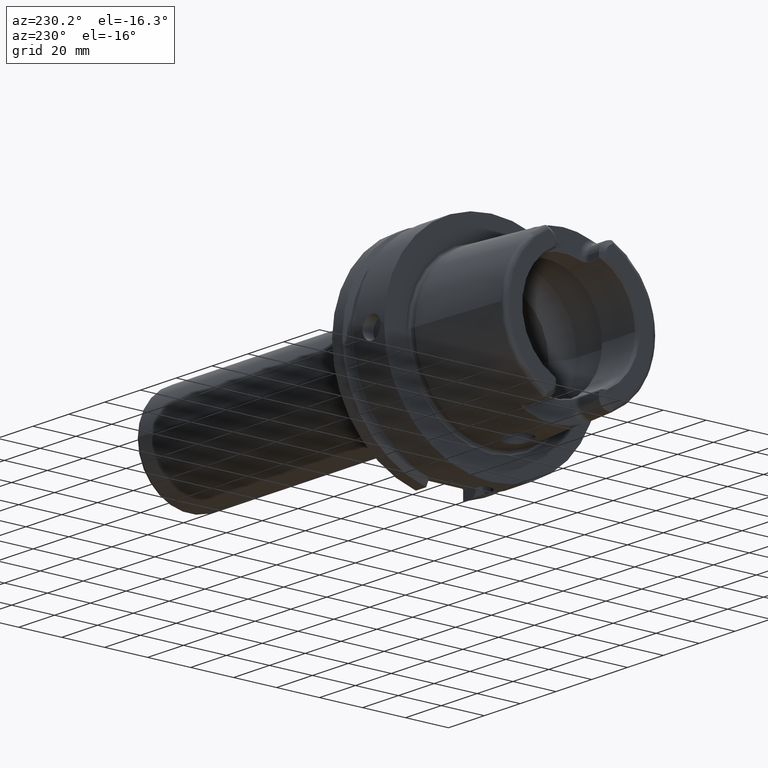
[diagram: clean part render]
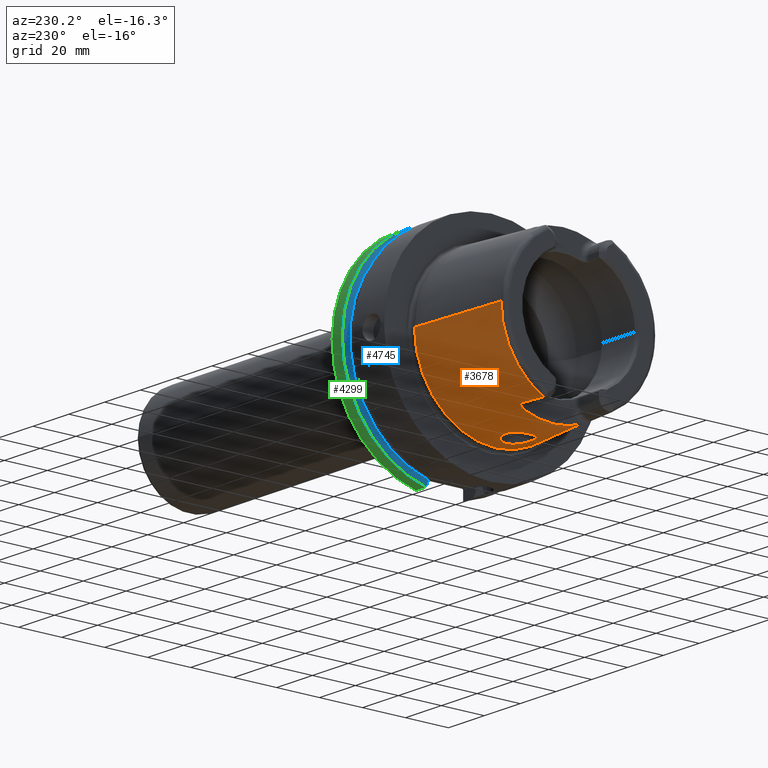
[diagram: same view with three faces highlighted in distinct colors, each labeled with its STEP entity id]
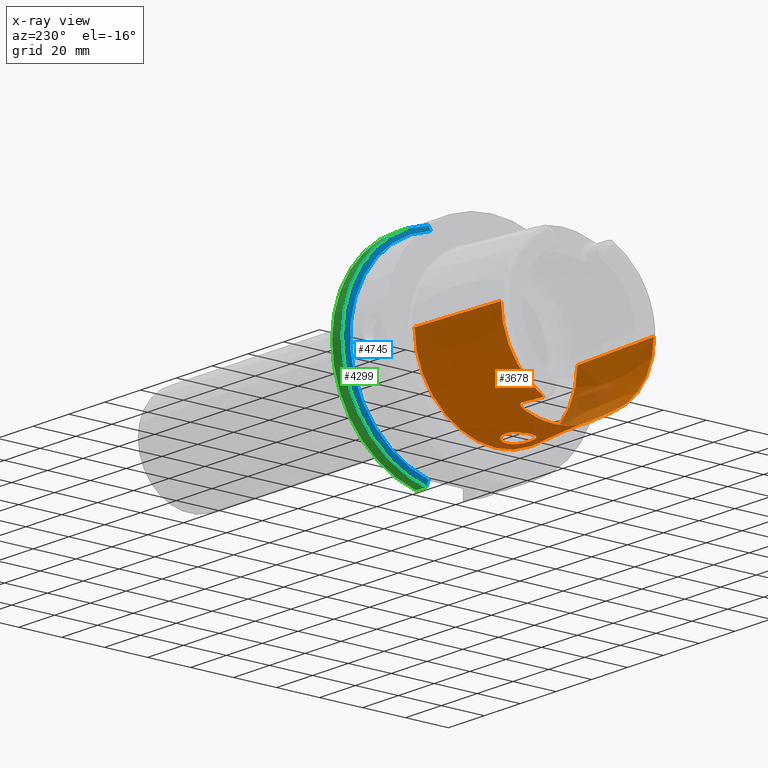
[diagram: x-ray of the same camera — body ghosted, the three highlighted faces saturated]
A machine part, auxiliary view with three faces highlighted in distinct colors.
The next image is the same camera in x-ray (body ghosted, the three faces saturated) — at least one of them is partly hidden behind the body in this view.
Their STEP definitions:

[orange] entity #3678 — the highlighted conical surface has half-angle 2.868 deg.
#307=CARTESIAN_POINT('',(-4.810007448473E1,0.E0,0.E0));
#308=DIRECTION('',(-1.E0,0.E0,0.E0));
#309=DIRECTION('',(0.E0,1.E0,0.E0));
#310=AXIS2_PLACEMENT_3D('',#307,#308,#309);
#392=CARTESIAN_POINT('',(-4.810007448473E1,0.E0,0.E0));
#393=DIRECTION('',(-1.E0,0.E0,0.E0));
#394=DIRECTION('',(0.E0,-4.403806547453E-1,-8.978111599474E-1));
#395=AXIS2_PLACEMENT_3D('',#392,#393,#394);
#542=CARTESIAN_POINT('',(-4.810007448473E1,1.567653238626E1,-3.196E1));
#543=CARTESIAN_POINT('',(-4.691253354608E1,1.581163323682E1,-3.196E1));
#544=CARTESIAN_POINT('',(-4.450693295241E1,1.608249060017E1,-3.196E1));
#545=CARTESIAN_POINT('',(-4.080822205394E1,1.649061651786E1,-3.196E1));
#546=CARTESIAN_POINT('',(-3.827971844003E1,1.676420418060E1,-3.196E1));
#547=CARTESIAN_POINT('',(-3.7E1,1.690135066910E1,-3.196E1));
#549=CARTESIAN_POINT('',(-3.5E1,0.E0,0.E0));
#550=DIRECTION('',(1.E0,0.E0,0.E0));
#551=DIRECTION('',(0.E0,-3.659355944317E-1,-9.306401779033E-1));
#552=AXIS2_PLACEMENT_3D('',#549,#550,#551);
#554=CARTESIAN_POINT('',(-3.7E1,-1.690135066910E1,-3.196E1));
#555=CARTESIAN_POINT('',(-3.827957528302E1,-1.676421952263E1,-3.196E1));
#556=CARTESIAN_POINT('',(-4.080788819039E1,-1.649065289085E1,-3.196E1));
#557=CARTESIAN_POINT('',(-4.450660828452E1,-1.608252688744E1,-3.196E1));
#558=CARTESIAN_POINT('',(-4.691239447940E1,-1.581164905777E1,-3.196E1));
#559=CARTESIAN_POINT('',(-4.810007448473E1,-1.567653238626E1,-3.196E1));
#561=DIRECTION('',(-9.987473526255E-1,5.003724236654E-2,0.E0));
#562=VECTOR('',#561,4.565726694029E1);
#563=CARTESIAN_POINT('',(-2.5E0,-3.788225E1,0.E0));
#564=LINE('',#563,#562);
#565=CARTESIAN_POINT('',(-2.5E0,0.E0,0.E0));
#566=DIRECTION('',(1.E0,0.E0,0.E0));
#567=DIRECTION('',(0.E0,-1.E0,0.E0));
#568=AXIS2_PLACEMENT_3D('',#565,#566,#567);
#570=DIRECTION('',(-9.987473526255E-1,-5.003724236654E-2,0.E0));
#571=VECTOR('',#570,4.565726694029E1);
#572=CARTESIAN_POINT('',(-2.5E0,3.788225E1,0.E0));
#573=LINE('',#572,#571);
#574=CARTESIAN_POINT('',(-8.500618228215E0,-4.475741567310E-11,
-3.758161092103E1));
#575=CARTESIAN_POINT('',(-8.500550626629E0,2.307123186996E-1,
-3.758164609326E1));
#576=CARTESIAN_POINT('',(-8.527361627144E0,7.336655055656E-1,
-3.757562989718E1));
#577=CARTESIAN_POINT('',(-8.658487901890E0,1.501607868725E0,-3.754653658895E1));
#578=CARTESIAN_POINT('',(-8.897257248323E0,2.287068896E0,-3.749470537780E1));
#579=CARTESIAN_POINT('',(-9.233930830616E0,3.038376631295E0,-3.742413833235E1));
#580=CARTESIAN_POINT('',(-9.665180423226E0,3.744542284435E0,-3.733806106411E1));
#581=CARTESIAN_POINT('',(-1.018494007596E1,4.392525906197E0,-3.724079839048E1));
#582=CARTESIAN_POINT('',(-1.078433252086E1,4.969742317677E0,-3.713748237766E1));
#583=CARTESIAN_POINT('',(-1.145295368828E1,5.465719413789E0,-3.703348699097E1));
#584=CARTESIAN_POINT('',(-1.217872434304E1,5.871741506149E0,-3.693411809702E1));
#585=CARTESIAN_POINT('',(-1.294907725396E1,6.181458789403E0,-3.684412609384E1));
#586=CARTESIAN_POINT('',(-1.375077304364E1,6.390383355882E0,-3.676749362246E1));
#587=CARTESIAN_POINT('',(-1.457124723519E1,6.496150992971E0,-3.670710043979E1));
#588=CARTESIAN_POINT('',(-1.539963323060E1,6.497327684605E0,-3.666473599908E1));
#589=CARTESIAN_POINT('',(-1.621811808436E1,6.394337052140E0,-3.664130538745E1));
#590=CARTESIAN_POINT('',(-1.701498565109E1,6.189982543680E0,-3.663607891146E1));
#591=CARTESIAN_POINT('',(-1.778004900083E1,5.887116868581E0,-3.664741303044E1));
#592=CARTESIAN_POINT('',(-1.850137732128E1,5.490146143225E0,-3.667277568766E1));
#593=CARTESIAN_POINT('',(-1.916799834207E1,5.004550368212E0,-3.670886700839E1));
#594=CARTESIAN_POINT('',(-1.976920462201E1,4.437176205297E0,-3.675182754134E1));
#595=CARTESIAN_POINT('',(-2.029477253260E1,3.796411168194E0,-3.679746060413E1));
#596=CARTESIAN_POINT('',(-2.073457092496E1,3.093790391877E0,-3.684142692236E1));
#597=CARTESIAN_POINT('',(-2.108101531841E1,2.341868855664E0,-3.687975533364E1));
#598=CARTESIAN_POINT('',(-2.132907064090E1,1.552529546171E0,-3.690920014808E1));
#599=CARTESIAN_POINT('',(-2.146979802624E1,7.662360037897E-1,
-3.692663777819E1));
#600=CARTESIAN_POINT('',(-2.149947827869E1,2.456572466609E-1,
-3.693041402385E1));
#601=CARTESIAN_POINT('',(-2.149938206728E1,4.252313622681E-11,
-3.693037255683E1));
#603=CARTESIAN_POINT('',(-2.149938206728E1,4.252313622681E-11,
-3.693037255683E1));
#604=CARTESIAN_POINT('',(-2.149945538697E1,-2.340479521171E-1,
-3.693040395485E1));
#605=CARTESIAN_POINT('',(-2.147182734210E1,-7.430736824871E-1,
-3.692689923808E1));
#606=CARTESIAN_POINT('',(-2.133729628437E1,-1.518670363132E0,
-3.691020402111E1));
#607=CARTESIAN_POINT('',(-2.109342961129E1,-2.309431654899E0,
-3.688118929283E1));
#608=CARTESIAN_POINT('',(-2.075099845802E1,-3.063198291705E0,
-3.684317083610E1));
#609=CARTESIAN_POINT('',(-2.031499413642E1,-3.768106404610E0,
-3.679936697460E1));
#610=CARTESIAN_POINT('',(-1.979289029767E1,-4.411650229581E0,
-3.675372219731E1));
#611=CARTESIAN_POINT('',(-1.919463266022E1,-4.982323872691E0,
-3.671056084722E1));
#612=CARTESIAN_POINT('',(-1.853041114464E1,-5.471591578572E0,
-3.667409350441E1));
#613=CARTESIAN_POINT('',(-1.781100487862E1,-5.872448697570E0,
-3.664820853921E1));
#614=CARTESIAN_POINT('',(-1.704753604412E1,-6.179316936003E0,
-3.663623504527E1));
#615=CARTESIAN_POINT('',(-1.625202603452E1,-6.387759294270E0,
-3.664073415043E1));
#616=CARTESIAN_POINT('',(-1.543496245560E1,-6.495024783349E0,
-3.666334839609E1));
#617=CARTESIAN_POINT('',(-1.460654750338E1,-6.498344270788E0,
-3.670491373185E1));
#618=CARTESIAN_POINT('',(-1.378596486485E1,-6.397082641248E0,
-3.676453213359E1));
#619=CARTESIAN_POINT('',(-1.298349373108E1,-6.192696568201E0,
-3.684047961027E1));
#620=CARTESIAN_POINT('',(-1.221144146647E1,-5.887281631963E0,
-3.692997057387E1));
#621=CARTESIAN_POINT('',(-1.148337668307E1,-5.485279169694E0,
-3.702903815359E1));
#622=CARTESIAN_POINT('',(-1.081197580096E1,-4.993009521795E0,
-3.713294698881E1));
#623=CARTESIAN_POINT('',(-1.020932849949E1,-4.419085304323E0,
-3.723640914420E1));
#624=CARTESIAN_POINT('',(-9.685901962872E0,-3.773893108114E0,
-3.733404753344E1));
#625=CARTESIAN_POINT('',(-9.250671307496E0,-3.069967665821E0,
-3.742070642908E1));
#626=CARTESIAN_POINT('',(-8.909811119218E0,-2.320344961222E0,
-3.749202098184E1));
#627=CARTESIAN_POINT('',(-8.666742386503E0,-1.536111417479E0,
-3.754472100539E1));
#628=CARTESIAN_POINT('',(-8.529385927200E0,-7.571760095601E-1,
-3.757517178087E1));
#629=CARTESIAN_POINT('',(-8.500529445925E0,-2.424682905367E-1,
-3.758165757513E1));
#630=CARTESIAN_POINT('',(-8.500618228215E0,-4.475741567310E-11,
-3.758161092103E1));
#644=CARTESIAN_POINT('',(-3.525270277560E1,1.501E1,-3.298688520224E1));
#645=CARTESIAN_POINT('',(-3.528534211849E1,1.513484846724E1,-3.292827892747E1));
#646=CARTESIAN_POINT('',(-3.535659114497E1,1.537361797185E1,-3.281400095423E1));
#647=CARTESIAN_POINT('',(-3.548419296966E1,1.570424630972E1,-3.264982183345E1));
#648=CARTESIAN_POINT('',(-3.562487069608E1,1.598931575733E1,-3.250314611781E1));
#649=CARTESIAN_POINT('',(-3.577616803803E1,1.623191524099E1,-3.237407229234E1));
#650=CARTESIAN_POINT('',(-3.593586343865E1,1.643375355599E1,-3.226300002168E1));
#651=CARTESIAN_POINT('',(-3.610247622728E1,1.659835163566E1,-3.216916661381E1));
#652=CARTESIAN_POINT('',(-3.628387335068E1,1.673284687743E1,-3.208910564772E1));
#653=CARTESIAN_POINT('',(-3.646929278561E1,1.682849462631E1,-3.202850145999E1));
#654=CARTESIAN_POINT('',(-3.665268151350E1,1.688632035229E1,-3.198763365132E1));
#655=CARTESIAN_POINT('',(-3.682605028784E1,1.691041315903E1,-3.196506559814E1));
#656=CARTESIAN_POINT('',(-3.694247506704E1,1.690751557406E1,-3.196E1));
#657=CARTESIAN_POINT('',(-3.7E1,1.690135066910E1,-3.196E1));
#659=CARTESIAN_POINT('',(-3.5E1,1.326662904053E1,-3.373942900971E1));
#660=CARTESIAN_POINT('',(-3.5E1,1.343868538316E1,-3.367177499958E1));
#661=CARTESIAN_POINT('',(-3.501772820886E1,1.379762114623E1,-3.352663792870E1));
#662=CARTESIAN_POINT('',(-3.510106181354E1,1.437663105579E1,-3.327825241176E1));
#663=CARTESIAN_POINT('',(-3.519623214612E1,1.479399468517E1,-3.308828225672E1));
#664=CARTESIAN_POINT('',(-3.525270277560E1,1.501E1,-3.298688520224E1));
#794=CARTESIAN_POINT('',(-3.525270277560E1,-1.501E1,-3.298688520224E1));
#795=CARTESIAN_POINT('',(-3.519623503110E1,-1.479400572048E1,
-3.308827707653E1));
#796=CARTESIAN_POINT('',(-3.510106651291E1,-1.437665722375E1,
-3.327824091962E1));
#797=CARTESIAN_POINT('',(-3.501772741615E1,-1.379761960865E1,
-3.352663874321E1));
#798=CARTESIAN_POINT('',(-3.5E1,-1.343868456055E1,-3.367177532304E1));
#799=CARTESIAN_POINT('',(-3.5E1,-1.326662904053E1,-3.373942900971E1));
#806=CARTESIAN_POINT('',(-3.7E1,-1.690135066910E1,-3.196E1));
#807=CARTESIAN_POINT('',(-3.694105098899E1,-1.690766819146E1,-3.196E1));
#808=CARTESIAN_POINT('',(-3.682165804795E1,-1.691069512865E1,
-3.196516571864E1));
#809=CARTESIAN_POINT('',(-3.663738639512E1,-1.688312526699E1,
-3.199018906640E1));
#810=CARTESIAN_POINT('',(-3.645510025775E1,-1.682223827784E1,
-3.203259314290E1));
#811=CARTESIAN_POINT('',(-3.627410510575E1,-1.672636778758E1,
-3.209303313888E1));
#812=CARTESIAN_POINT('',(-3.609632853779E1,-1.659293907050E1,
-3.217230584166E1));
#813=CARTESIAN_POINT('',(-3.592925092948E1,-1.642640915267E1,
-3.226711747878E1));
#814=CARTESIAN_POINT('',(-3.576988123363E1,-1.622286102910E1,
-3.237896532757E1));
#815=CARTESIAN_POINT('',(-3.561995095366E1,-1.598020953691E1,
-3.250789603110E1));
#816=CARTESIAN_POINT('',(-3.548248183207E1,-1.569950921203E1,
-3.265215582464E1));
#817=CARTESIAN_POINT('',(-3.535882357255E1,-1.537978468576E1,
-3.281096523600E1));
#818=CARTESIAN_POINT('',(-3.528614819240E1,-1.513793177358E1,
-3.292683156410E1));
#819=CARTESIAN_POINT('',(-3.525270277560E1,-1.501E1,-3.298688520224E1));
#2713=CARTESIAN_POINT('',(-2.5E0,3.788225E1,0.E0));
#2714=CARTESIAN_POINT('',(-2.5E0,-3.788225E1,0.E0));
#2715=VERTEX_POINT('',#2713);
#2716=VERTEX_POINT('',#2714);
#2717=CARTESIAN_POINT('',(-4.810007448473E1,3.559768626831E1,0.E0));
#2718=VERTEX_POINT('',#2717);
#2719=CARTESIAN_POINT('',(-4.810007448473E1,-3.559768626831E1,0.E0));
#2720=VERTEX_POINT('',#2719);
#2837=CARTESIAN_POINT('',(-4.810007448473E1,1.567653238626E1,-3.196E1));
#2838=VERTEX_POINT('',#2837);
#2839=CARTESIAN_POINT('',(-4.810007448473E1,-1.567653238626E1,-3.196E1));
#2840=VERTEX_POINT('',#2839);
#2842=CARTESIAN_POINT('',(-3.525270277560E1,-1.501E1,-3.298688520224E1));
#2844=VERTEX_POINT('',#2842);
#2845=VERTEX_POINT('',#799);
#2846=VERTEX_POINT('',#659);
#2847=VERTEX_POINT('',#664);
#2858=CARTESIAN_POINT('',(-3.7E1,-1.690135066910E1,-3.196E1));
#2859=VERTEX_POINT('',#2858);
#2860=CARTESIAN_POINT('',(-3.7E1,1.690135066910E1,-3.196E1));
#2861=VERTEX_POINT('',#2860);
#2926=VERTEX_POINT('',#574);
#2927=VERTEX_POINT('',#601);
#3646=CARTESIAN_POINT('',(-2.530003724237E1,0.E0,0.E0));
#3647=DIRECTION('',(1.E0,0.E0,0.E0));
#3648=DIRECTION('',(0.E0,-1.E0,0.E0));
#3649=AXIS2_PLACEMENT_3D('',#3646,#3647,#3648);
#3650=CONICAL_SURFACE('',#3649,3.673996813416E1,2.868120487315E0);
#3652=ORIENTED_EDGE('',*,*,#3651,.T.);
#3654=ORIENTED_EDGE('',*,*,#3653,.F.);
#3656=ORIENTED_EDGE('',*,*,#3655,.F.);
#3658=ORIENTED_EDGE('',*,*,#3657,.F.);
#3660=ORIENTED_EDGE('',*,*,#3659,.F.);
#3662=ORIENTED_EDGE('',*,*,#3661,.F.);
#3663=ORIENTED_EDGE('',*,*,#3637,.T.);
#3664=ORIENTED_EDGE('',*,*,#3476,.T.);
#3665=ORIENTED_EDGE('',*,*,#3178,.F.);
#3667=ORIENTED_EDGE('',*,*,#3666,.T.);
#3668=ORIENTED_EDGE('',*,*,#3174,.T.);
#3669=ORIENTED_EDGE('',*,*,#3455,.T.);
#3670=EDGE_LOOP('',(#3652,#3654,#3656,#3658,#3660,#3662,#3663,#3664,#3665,#3667,
#3668,#3669));
#3671=FACE_OUTER_BOUND('',#3670,.F.);
#3673=ORIENTED_EDGE('',*,*,#3672,.F.);
#3675=ORIENTED_EDGE('',*,*,#3674,.F.);
#3676=EDGE_LOOP('',(#3673,#3675));
#3677=FACE_BOUND('',#3676,.F.);
#3678=ADVANCED_FACE('',(#3671,#3677),#3650,.T.);
#311=CIRCLE('',#310,3.559768626831E1);
#396=CIRCLE('',#395,3.559768626831E1);
#548=B_SPLINE_CURVE_WITH_KNOTS('',3,(#542,#543,#544,#545,#546,#547),
.UNSPECIFIED.,.F.,.F.,(4,1,1,4),(0.E0,3.333333333333E-1,6.666666666667E-1,1.E0),
.UNSPECIFIED.);
#553=CIRCLE('',#552,3.6254E1);
#560=B_SPLINE_CURVE_WITH_KNOTS('',3,(#554,#555,#556,#557,#558,#559),
.UNSPECIFIED.,.F.,.F.,(4,1,1,4),(0.E0,3.333333333333E-1,6.666666666667E-1,1.E0),
.UNSPECIFIED.);
#569=CIRCLE('',#568,3.788225E1);
#602=B_SPLINE_CURVE_WITH_KNOTS('',3,(#574,#575,#576,#577,#578,#579,#580,#581,
#582,#583,#584,#585,#586,#587,#588,#589,#590,#591,#592,#593,#594,#595,#596,#597,
#598,#599,#600,#601),.UNSPECIFIED.,.F.,.F.,(4,1,1,1,1,1,1,1,1,1,1,1,1,1,1,1,1,1,
1,1,1,1,1,1,1,4),(0.E0,3.441266963499E-2,7.481788366542E-2,1.152230976959E-1,
1.556283117263E-1,1.960335257567E-1,2.364387397872E-1,2.768439538176E-1,
3.172491678480E-1,3.576543818785E-1,3.980595959089E-1,4.384648099393E-1,
4.788700239698E-1,5.192752380002E-1,5.596804520306E-1,6.000856660611E-1,
6.404908800915E-1,6.808960941219E-1,7.213013081524E-1,7.617065221828E-1,
8.021117362132E-1,8.425169502437E-1,8.829221642741E-1,9.233273783045E-1,
9.637325923350E-1,1.E0),.UNSPECIFIED.);
#631=B_SPLINE_CURVE_WITH_KNOTS('',3,(#603,#604,#605,#606,#607,#608,#609,#610,
#611,#612,#613,#614,#615,#616,#617,#618,#619,#620,#621,#622,#623,#624,#625,#626,
#627,#628,#629,#630),.UNSPECIFIED.,.F.,.F.,(4,1,1,1,1,1,1,1,1,1,1,1,1,1,1,1,1,1,
1,1,1,1,1,1,1,4),(0.E0,3.452929677679E-2,7.493307390290E-2,1.153368510290E-1,
1.557406281551E-1,1.961444052812E-1,2.365481824073E-1,2.769519595334E-1,
3.173557366596E-1,3.577595137857E-1,3.981632909118E-1,4.385670680379E-1,
4.789708451640E-1,5.193746222901E-1,5.597783994162E-1,6.001821765423E-1,
6.405859536684E-1,6.809897307945E-1,7.213935079206E-1,7.617972850467E-1,
8.022010621729E-1,8.426048392990E-1,8.830086164251E-1,9.234123935512E-1,
9.638161706773E-1,1.E0),.UNSPECIFIED.);
#658=B_SPLINE_CURVE_WITH_KNOTS('',3,(#644,#645,#646,#647,#648,#649,#650,#651,
#652,#653,#654,#655,#656,#657),.UNSPECIFIED.,.F.,.F.,(4,1,1,1,1,1,1,1,1,1,1,4),(
0.E0,9.090909090909E-2,1.818181818182E-1,2.727272727273E-1,3.636363636364E-1,
4.545454545455E-1,5.454545454545E-1,6.363636363636E-1,7.272727272727E-1,
8.181818181818E-1,9.090909090909E-1,1.E0),.UNSPECIFIED.);
#665=B_SPLINE_CURVE_WITH_KNOTS('',3,(#659,#660,#661,#662,#663,#664),
.UNSPECIFIED.,.F.,.F.,(4,1,1,4),(0.E0,3.333333333333E-1,6.666666666667E-1,1.E0),
.UNSPECIFIED.);
#800=B_SPLINE_CURVE_WITH_KNOTS('',3,(#794,#795,#796,#797,#798,#799),
.UNSPECIFIED.,.F.,.F.,(4,1,1,4),(0.E0,3.333333333333E-1,6.666666666667E-1,1.E0),
.UNSPECIFIED.);
#820=B_SPLINE_CURVE_WITH_KNOTS('',3,(#806,#807,#808,#809,#810,#811,#812,#813,
#814,#815,#816,#817,#818,#819),.UNSPECIFIED.,.F.,.F.,(4,1,1,1,1,1,1,1,1,1,1,4),(
0.E0,9.090909090909E-2,1.818181818182E-1,2.727272727273E-1,3.636363636364E-1,
4.545454545455E-1,5.454545454545E-1,6.363636363636E-1,7.272727272727E-1,
8.181818181818E-1,9.090909090909E-1,1.E0),.UNSPECIFIED.);
#3174=EDGE_CURVE('',#2715,#2718,#573,.T.);
#3178=EDGE_CURVE('',#2716,#2720,#564,.T.);
#3455=EDGE_CURVE('',#2718,#2838,#311,.T.);
#3476=EDGE_CURVE('',#2840,#2720,#396,.T.);
#3637=EDGE_CURVE('',#2859,#2840,#560,.T.);
#3651=EDGE_CURVE('',#2838,#2861,#548,.T.);
#3653=EDGE_CURVE('',#2847,#2861,#658,.T.);
#3655=EDGE_CURVE('',#2846,#2847,#665,.T.);
#3657=EDGE_CURVE('',#2845,#2846,#553,.T.);
#3659=EDGE_CURVE('',#2844,#2845,#800,.T.);
#3661=EDGE_CURVE('',#2859,#2844,#820,.T.);
#3666=EDGE_CURVE('',#2716,#2715,#569,.T.);
#3672=EDGE_CURVE('',#2926,#2927,#602,.T.);
#3674=EDGE_CURVE('',#2927,#2926,#631,.T.);

[blue] entity #4745 — the highlighted conical surface has half-angle 60 deg.
#1646=CARTESIAN_POINT('',(2.324759526419E1,1.1E1,-4.877499359303E1));
#1647=CARTESIAN_POINT('',(2.309075618244E1,1.1E1,-4.849651763825E1));
#1648=CARTESIAN_POINT('',(2.277996511889E1,1.1E1,-4.794446101512E1));
#1649=CARTESIAN_POINT('',(2.232251548208E1,1.1E1,-4.713119970766E1));
#1650=CARTESIAN_POINT('',(2.202321854676E1,1.1E1,-4.659863454325E1));
#1651=CARTESIAN_POINT('',(2.1875E1,1.1E1,-4.633477721644E1));
#1653=CARTESIAN_POINT('',(2.324759526419E1,0.E0,0.E0));
#1654=DIRECTION('',(1.E0,0.E0,0.E0));
#1655=DIRECTION('',(0.E0,2.2E-1,-9.754998718606E-1));
#1656=AXIS2_PLACEMENT_3D('',#1653,#1654,#1655);
#1658=CARTESIAN_POINT('',(2.1875E1,1.E1,4.656083740331E1));
#1659=CARTESIAN_POINT('',(2.202341485415E1,1.E1,4.682376142925E1));
#1660=CARTESIAN_POINT('',(2.232297392293E1,1.E1,4.735424823675E1));
#1661=CARTESIAN_POINT('',(2.278043311037E1,1.E1,4.816377318979E1));
#1662=CARTESIAN_POINT('',(2.309095690730E1,1.E1,4.871289474479E1));
#1663=CARTESIAN_POINT('',(2.324759526419E1,1.E1,4.898979485566E1));
#1665=CARTESIAN_POINT('',(2.1875E1,0.E0,0.E0));
#1666=DIRECTION('',(-1.E0,0.E0,0.E0));
#1667=DIRECTION('',(0.E0,2.099843560504E-1,9.777047459300E-1));
#1668=AXIS2_PLACEMENT_3D('',#1665,#1666,#1667);
#2986=CARTESIAN_POINT('',(2.1875E1,1.E1,4.656083740331E1));
#2987=VERTEX_POINT('',#2986);
#2989=VERTEX_POINT('',#1663);
#2998=CARTESIAN_POINT('',(2.324759526419E1,1.1E1,-4.877499359303E1));
#3000=VERTEX_POINT('',#2998);
#3026=CARTESIAN_POINT('',(2.1875E1,1.1E1,-4.633477721644E1));
#3027=VERTEX_POINT('',#3026);
#4733=CARTESIAN_POINT('',(2.256129763210E1,0.E0,0.E0));
#4734=DIRECTION('',(1.E0,0.E0,0.E0));
#4735=DIRECTION('',(0.E0,-1.E0,0.E0));
#4736=AXIS2_PLACEMENT_3D('',#4733,#4734,#4735);
#4737=CONICAL_SURFACE('',#4736,4.881129763210E1,6.E1);
#4738=ORIENTED_EDGE('',*,*,#4364,.F.);
#4739=ORIENTED_EDGE('',*,*,#4295,.T.);
#4741=ORIENTED_EDGE('',*,*,#4740,.F.);
#4742=ORIENTED_EDGE('',*,*,#4697,.T.);
#4743=EDGE_LOOP('',(#4738,#4739,#4741,#4742));
#4744=FACE_OUTER_BOUND('',#4743,.F.);
#4745=ADVANCED_FACE('',(#4744),#4737,.T.);
#1652=B_SPLINE_CURVE_WITH_KNOTS('',3,(#1646,#1647,#1648,#1649,#1650,#1651),
.UNSPECIFIED.,.F.,.F.,(4,1,1,4),(0.E0,3.333333333333E-1,6.666666666667E-1,1.E0),
.UNSPECIFIED.);
#1657=CIRCLE('',#1656,5.E1);
#1664=B_SPLINE_CURVE_WITH_KNOTS('',3,(#1658,#1659,#1660,#1661,#1662,#1663),
.UNSPECIFIED.,.F.,.F.,(4,1,1,4),(0.E0,3.333333333333E-1,6.666666666667E-1,1.E0),
.UNSPECIFIED.);
#1669=CIRCLE('',#1668,4.762259526419E1);
#4295=EDGE_CURVE('',#3000,#2989,#1657,.T.);
#4364=EDGE_CURVE('',#3000,#3027,#1652,.T.);
#4697=EDGE_CURVE('',#2987,#3027,#1669,.T.);
#4740=EDGE_CURVE('',#2987,#2989,#1664,.T.);

[green] entity #4299 — the highlighted cylindrical surface (partial cylindrical patch) has radius 50 mm, axis along (1, 0, 0).
#1110=DIRECTION('',(1.E0,0.E0,0.E0));
#1111=VECTOR('',#1110,5.752404735808E0);
#1112=CARTESIAN_POINT('',(2.324759526419E1,1.1E1,-4.877499359303E1));
#1113=LINE('',#1112,#1111);
#1114=CARTESIAN_POINT('',(2.9E1,0.E0,0.E0));
#1115=DIRECTION('',(1.E0,0.E0,0.E0));
#1116=DIRECTION('',(0.E0,2.2E-1,-9.754998718606E-1));
#1117=AXIS2_PLACEMENT_3D('',#1114,#1115,#1116);
#1119=DIRECTION('',(1.E0,0.E0,0.E0));
#1120=VECTOR('',#1119,5.752404735808E0);
#1121=CARTESIAN_POINT('',(2.324759526419E1,1.E1,4.898979485566E1));
#1122=LINE('',#1121,#1120);
#1653=CARTESIAN_POINT('',(2.324759526419E1,0.E0,0.E0));
#1654=DIRECTION('',(1.E0,0.E0,0.E0));
#1655=DIRECTION('',(0.E0,2.2E-1,-9.754998718606E-1));
#1656=AXIS2_PLACEMENT_3D('',#1653,#1654,#1655);
#1663=CARTESIAN_POINT('',(2.324759526419E1,1.E1,4.898979485566E1));
#2989=VERTEX_POINT('',#1663);
#2998=CARTESIAN_POINT('',(2.324759526419E1,1.1E1,-4.877499359303E1));
#2999=CARTESIAN_POINT('',(2.9E1,1.1E1,-4.877499359303E1));
#3000=VERTEX_POINT('',#2998);
#3001=VERTEX_POINT('',#2999);
#3044=CARTESIAN_POINT('',(2.9E1,1.E1,4.898979485566E1));
#3045=VERTEX_POINT('',#3044);
#4285=CARTESIAN_POINT('',(-5.395E1,0.E0,0.E0));
#4286=DIRECTION('',(1.E0,0.E0,0.E0));
#4287=DIRECTION('',(0.E0,-1.E0,0.E0));
#4288=AXIS2_PLACEMENT_3D('',#4285,#4286,#4287);
#4289=CYLINDRICAL_SURFACE('',#4288,5.E1);
#4291=ORIENTED_EDGE('',*,*,#4290,.T.);
#4292=ORIENTED_EDGE('',*,*,#4234,.T.);
#4294=ORIENTED_EDGE('',*,*,#4293,.F.);
#4296=ORIENTED_EDGE('',*,*,#4295,.F.);
#4297=EDGE_LOOP('',(#4291,#4292,#4294,#4296));
#4298=FACE_OUTER_BOUND('',#4297,.F.);
#4299=ADVANCED_FACE('',(#4298),#4289,.T.);
#1118=CIRCLE('',#1117,5.E1);
#1657=CIRCLE('',#1656,5.E1);
#4234=EDGE_CURVE('',#3001,#3045,#1118,.T.);
#4290=EDGE_CURVE('',#3000,#3001,#1113,.T.);
#4293=EDGE_CURVE('',#2989,#3045,#1122,.T.);
#4295=EDGE_CURVE('',#3000,#2989,#1657,.T.);